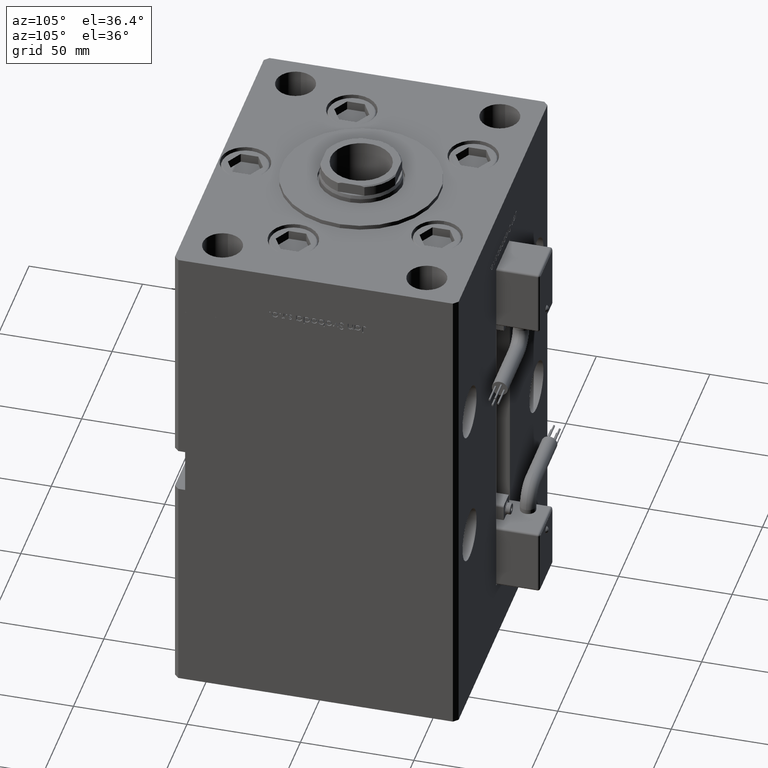
[diagram: clean part render]
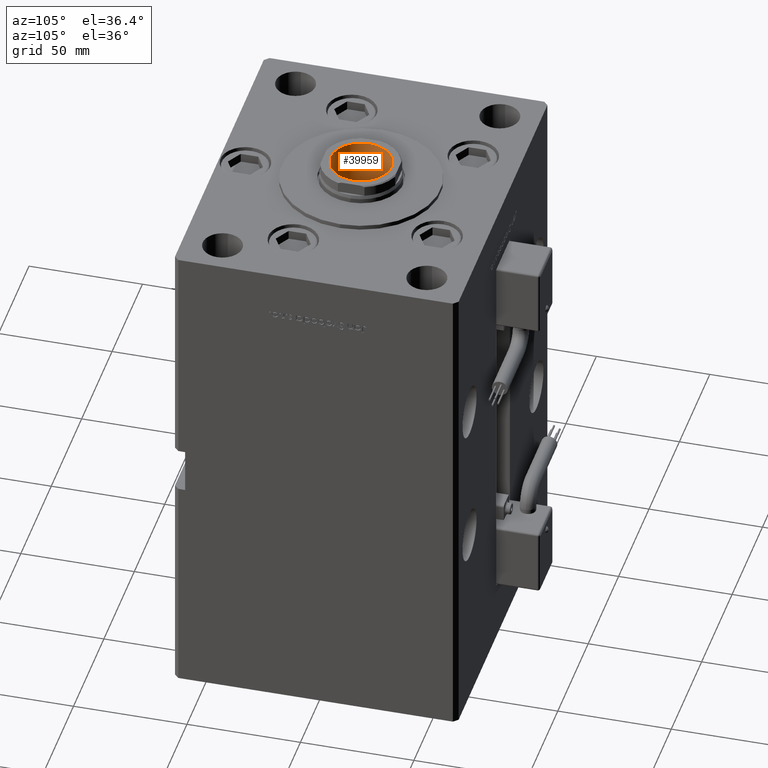
[diagram: same view with one face highlighted and labeled with its STEP entity id]
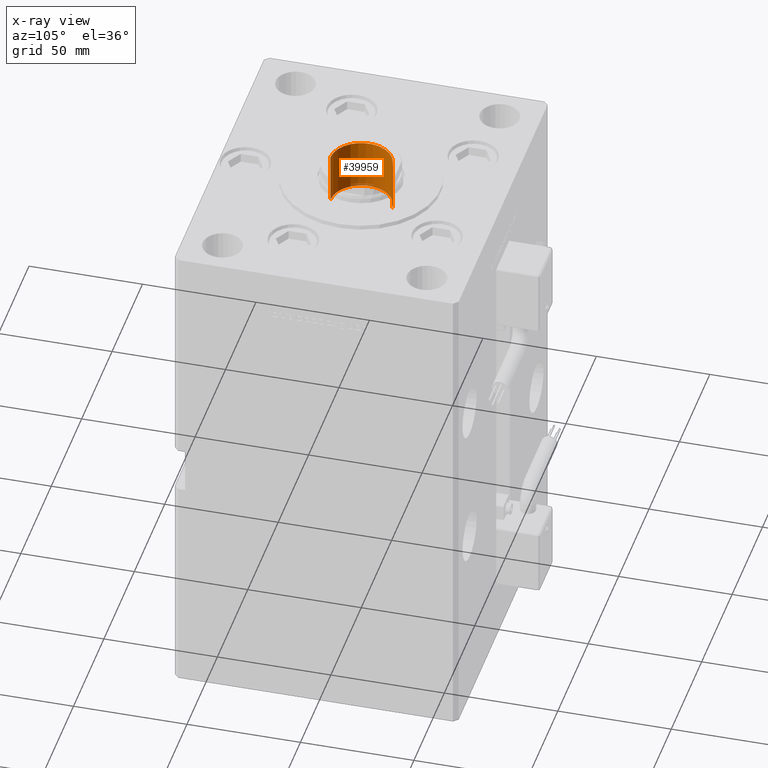
[diagram: x-ray of the same camera — body ghosted, the highlighted face saturated]
A machine part, auxiliary view. The second image highlights one B-rep face of the part: STEP entity #39959.
The next image is the same camera in x-ray: the body ghosted, the highlighted face saturated — about 2% of this face is hidden behind the body in this view.
In plain terms, the highlighted cylindrical surface (edge-blend (fillet) strip) has radius 13.5 mm, axis along (0, 0, 1).
Its self-contained STEP definition (entity closure, byte-faithful):
#2228 = VERTEX_POINT ( 'NONE', #34739 ) ;
#2491 = VECTOR ( 'NONE', #24485, 1000.000000000000000 ) ;
#2900 = CARTESIAN_POINT ( 'NONE',  ( 0.000000000000000000, 0.000000000000000000, 0.000000000000000000 ) ) ;
#5864 = VECTOR ( 'NONE', #9165, 1000.000000000000000 ) ;
#8193 = EDGE_CURVE ( 'NONE', #2228, #38700, #25383, .T. ) ;
#9154 = EDGE_LOOP ( 'NONE', ( #44573, #48888, #52478, #17814 ) ) ;
#9165 = DIRECTION ( 'NONE',  ( 1.000000000000000000, -0.000000000000000000, -0.000000000000000000 ) ) ;
#10050 = AXIS2_PLACEMENT_3D ( 'NONE', #12485, #55347, #51406 ) ;
#12195 = DIRECTION ( 'NONE',  ( 1.000000000000000000, -0.000000000000000000, -0.000000000000000000 ) ) ;
#12485 = CARTESIAN_POINT ( 'NONE',  ( -1.040949779275249943E-15, 0.000000000000000000, 0.000000000000000000 ) ) ;
#14808 = EDGE_CURVE ( 'NONE', #48959, #49375, #49810, .T. ) ;
#17013 = CYLINDRICAL_SURFACE ( 'NONE', #54296, 13.49999999999999645 ) ;
#17814 = ORIENTED_EDGE ( 'NONE', *, *, #21266, .F. ) ;
#21266 = EDGE_CURVE ( 'NONE', #49375, #38700, #52067, .T. ) ;
#24356 = FACE_OUTER_BOUND ( 'NONE', #9154, .T. ) ;
#24485 = DIRECTION ( 'NONE',  ( 1.000000000000000000, -0.000000000000000000, -0.000000000000000000 ) ) ;
#25383 = CIRCLE ( 'NONE', #10050, 13.49999999999999822 ) ;
#25577 = CARTESIAN_POINT ( 'NONE',  ( 0.000000000000000000, 0.000000000000000000, -13.49999999999999645 ) ) ;
#27619 = CARTESIAN_POINT ( 'NONE',  ( 0.000000000000000000, 1.653273178848926472E-15, 13.49999999999999645 ) ) ;
#28465 = CARTESIAN_POINT ( 'NONE',  ( -1.040949779275249943E-15, 0.000000000000000000, -13.49999999999999822 ) ) ;
#29429 = DIRECTION ( 'NONE',  ( 0.000000000000000000, 0.000000000000000000, -1.000000000000000000 ) ) ;
#29991 = DIRECTION ( 'NONE',  ( 1.000000000000000000, -0.000000000000000000, -0.000000000000000000 ) ) ;
#30884 = AXIS2_PLACEMENT_3D ( 'NONE', #42945, #29991, #34500 ) ;
#34500 = DIRECTION ( 'NONE',  ( 0.000000000000000000, 0.000000000000000000, -1.000000000000000000 ) ) ;
#34739 = CARTESIAN_POINT ( 'NONE',  ( -1.040949779275249943E-15, 1.653273178848926867E-15, 13.50000000000000000 ) ) ;
#38700 = VERTEX_POINT ( 'NONE', #28465 ) ;
#38966 = CARTESIAN_POINT ( 'NONE',  ( -22.39000000000000057, 1.653273178848926275E-15, 13.49999999999999467 ) ) ;
#39959 = ADVANCED_FACE ( 'NONE', ( #24356 ), #17013, .F. ) ;
#41269 = CARTESIAN_POINT ( 'NONE',  ( -22.39000000000000057, 0.000000000000000000, -13.49999999999999467 ) ) ;
#42945 = CARTESIAN_POINT ( 'NONE',  ( -22.39000000000000057, 0.000000000000000000, 0.000000000000000000 ) ) ;
#44573 = ORIENTED_EDGE ( 'NONE', *, *, #14808, .F. ) ;
#48888 = ORIENTED_EDGE ( 'NONE', *, *, #52770, .T. ) ;
#48959 = VERTEX_POINT ( 'NONE', #38966 ) ;
#49375 = VERTEX_POINT ( 'NONE', #41269 ) ;
#49810 = CIRCLE ( 'NONE', #30884, 13.49999999999999467 ) ;
#50156 = LINE ( 'NONE', #27619, #2491 ) ;
#51406 = DIRECTION ( 'NONE',  ( 0.000000000000000000, 0.000000000000000000, -1.000000000000000000 ) ) ;
#52067 = LINE ( 'NONE', #25577, #5864 ) ;
#52478 = ORIENTED_EDGE ( 'NONE', *, *, #8193, .T. ) ;
#52770 = EDGE_CURVE ( 'NONE', #48959, #2228, #50156, .T. ) ;
#54296 = AXIS2_PLACEMENT_3D ( 'NONE', #2900, #12195, #29429 ) ;
#55347 = DIRECTION ( 'NONE',  ( 1.000000000000000000, -0.000000000000000000, -0.000000000000000000 ) ) ;